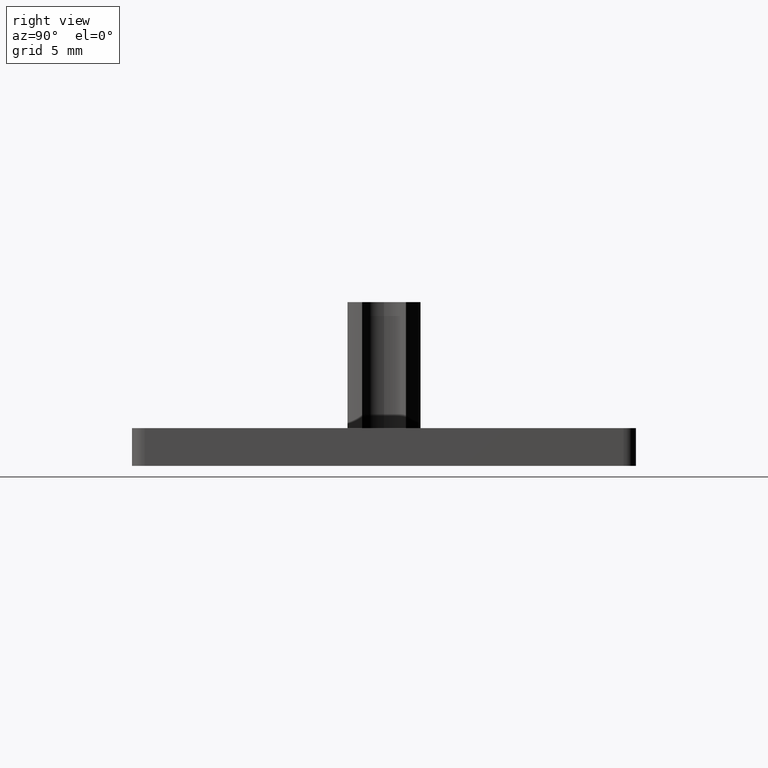
[diagram: clean part render]
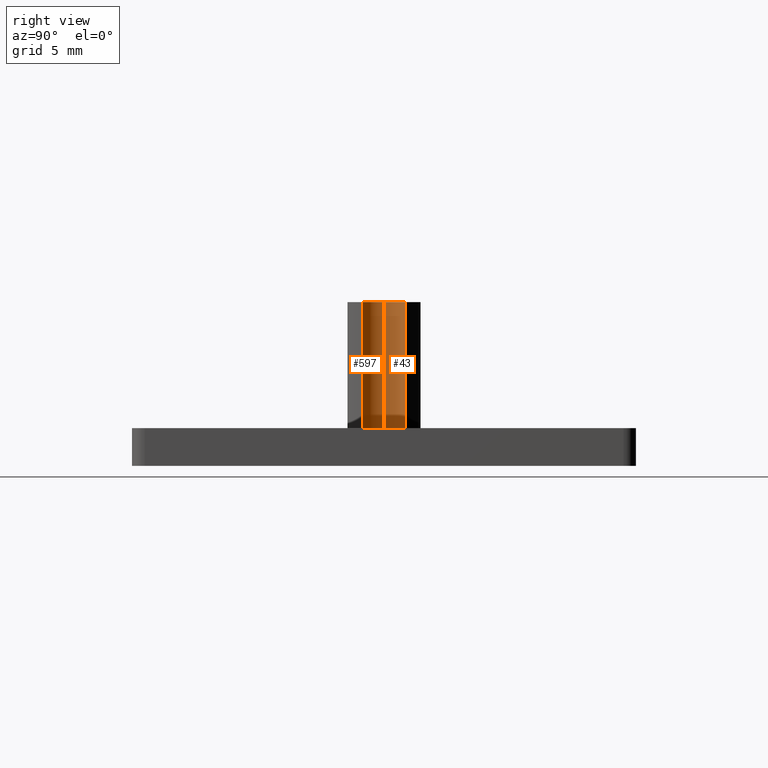
[diagram: same view with one multi-face feature highlighted, each face labeled with its STEP entity id]
A machine part, right view. The highlighted faces form ONE feature: a constant-radius fillet chain: 2 tangent blend faces with common blend radius 1.85 mm. The faces share edges in the B-rep.
Their STEP definitions:
[1] entity #43 (Cylinder):
#2=CARTESIAN_POINT('',(-22.972161560216634,-8.350442477875610,13.000000010000001));
#3=DIRECTION('',(0.0,0.0,-1.0));
#4=DIRECTION('',(0.820773029339414,-0.571254439202884,0.0));
#5=AXIS2_PLACEMENT_3D('',#2,#3,#4);
#6=CYLINDRICAL_SURFACE('',#5,1.850000000000001);
#7=CARTESIAN_POINT('',(-24.822161560216632,-8.350442477875610,13.0));
#8=VERTEX_POINT('',#7);
#9=CARTESIAN_POINT('',(-23.614734513273326,-6.615622602499498,13.0));
#10=VERTEX_POINT('',#9);
#11=CARTESIAN_POINT('',(-22.972161560216630,-8.350442477875610,13.0));
#12=DIRECTION('',(0.0,0.0,-1.0));
#13=DIRECTION('',(0.0,1.0,0.0));
#14=AXIS2_PLACEMENT_3D('',#11,#12,#13);
#15=CIRCLE('',#14,1.850000000000001);
#16=EDGE_CURVE('',#8,#10,#15,.T.);
#17=ORIENTED_EDGE('',*,*,#16,.F.);
#18=CARTESIAN_POINT('',(-24.822161560216632,-8.350442477875610,3.0));
#19=VERTEX_POINT('',#18);
#20=CARTESIAN_POINT('',(-24.822161560216632,-8.350442477875610,13.0));
#21=DIRECTION('',(0.0,0.0,-1.0));
#22=VECTOR('',#21,10.0);
#23=LINE('',#20,#22);
#24=EDGE_CURVE('',#8,#19,#23,.T.);
#25=ORIENTED_EDGE('',*,*,#24,.T.);
#26=CARTESIAN_POINT('',(-23.614734513273326,-6.615622602499498,3.0));
#27=VERTEX_POINT('',#26);
#28=CARTESIAN_POINT('',(-22.972161560216630,-8.350442477875610,3.0));
#29=DIRECTION('',(0.0,0.0,-1.0));
#30=DIRECTION('',(0.0,1.0,0.0));
#31=AXIS2_PLACEMENT_3D('',#28,#29,#30);
#32=CIRCLE('',#31,1.850000000000001);
#33=EDGE_CURVE('',#19,#27,#32,.T.);
#34=ORIENTED_EDGE('',*,*,#33,.T.);
#35=CARTESIAN_POINT('',(-23.614734513273326,-6.615622602499498,13.0));
#36=DIRECTION('',(0.0,0.0,-1.0));
#37=VECTOR('',#36,10.0);
#38=LINE('',#35,#37);
#39=EDGE_CURVE('',#10,#27,#38,.T.);
#40=ORIENTED_EDGE('',*,*,#39,.F.);
#41=EDGE_LOOP('',(#17,#25,#34,#40));
#42=FACE_OUTER_BOUND('',#41,.T.);
#43=ADVANCED_FACE('',(#42),#6,.F.);
[2] entity #597 (Cylinder):
#7=CARTESIAN_POINT('',(-24.822161560216632,-8.350442477875610,13.0));
#8=VERTEX_POINT('',#7);
#18=CARTESIAN_POINT('',(-24.822161560216632,-8.350442477875610,3.0));
#19=VERTEX_POINT('',#18);
#20=CARTESIAN_POINT('',(-24.822161560216632,-8.350442477875610,13.0));
#21=DIRECTION('',(0.0,0.0,-1.0));
#22=VECTOR('',#21,10.0);
#23=LINE('',#20,#22);
#24=EDGE_CURVE('',#8,#19,#23,.T.);
#253=CARTESIAN_POINT('',(-23.614734513273326,-10.085262353251728,3.0));
#254=VERTEX_POINT('',#253);
#255=CARTESIAN_POINT('',(-22.972161560216630,-8.350442477875610,3.0));
#256=DIRECTION('',(0.0,0.0,-1.0));
#257=DIRECTION('',(0.0,1.0,0.0));
#258=AXIS2_PLACEMENT_3D('',#255,#256,#257);
#259=CIRCLE('',#258,1.850000000000001);
#260=EDGE_CURVE('',#254,#19,#259,.T.);
#561=CARTESIAN_POINT('',(-23.614734513273326,-10.085262353251728,13.0));
#562=VERTEX_POINT('',#561);
#563=CARTESIAN_POINT('',(-23.614734513273326,-10.085262353251728,13.0));
#564=DIRECTION('',(0.0,0.0,-1.0));
#565=VECTOR('',#564,10.0);
#566=LINE('',#563,#565);
#567=EDGE_CURVE('',#562,#254,#566,.T.);
#580=CARTESIAN_POINT('',(-22.972161560216627,-8.350442477875610,13.000000010000001));
#581=DIRECTION('',(0.0,0.0,-1.0));
#582=DIRECTION('',(0.820773029339414,0.571254439202884,0.0));
#583=AXIS2_PLACEMENT_3D('',#580,#581,#582);
#584=CYLINDRICAL_SURFACE('',#583,1.850000000000001);
#585=ORIENTED_EDGE('',*,*,#24,.F.);
#586=CARTESIAN_POINT('',(-22.972161560216630,-8.350442477875610,13.0));
#587=DIRECTION('',(0.0,0.0,-1.0));
#588=DIRECTION('',(0.0,1.0,0.0));
#589=AXIS2_PLACEMENT_3D('',#586,#587,#588);
#590=CIRCLE('',#589,1.850000000000001);
#591=EDGE_CURVE('',#562,#8,#590,.T.);
#592=ORIENTED_EDGE('',*,*,#591,.F.);
#593=ORIENTED_EDGE('',*,*,#567,.T.);
#594=ORIENTED_EDGE('',*,*,#260,.T.);
#595=EDGE_LOOP('',(#585,#592,#593,#594));
#596=FACE_OUTER_BOUND('',#595,.T.);
#597=ADVANCED_FACE('',(#596),#584,.F.);